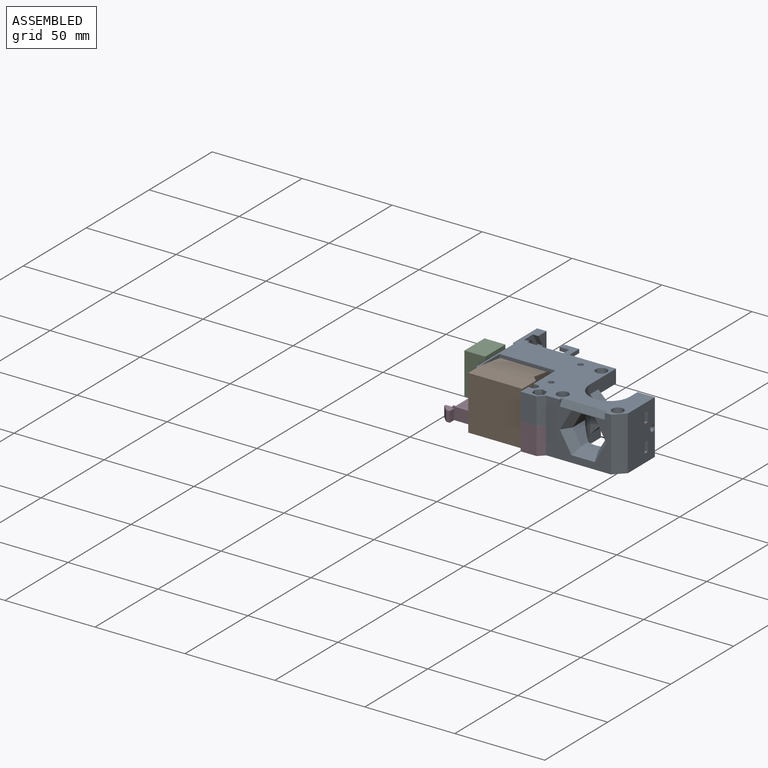
[diagram: assembled view]
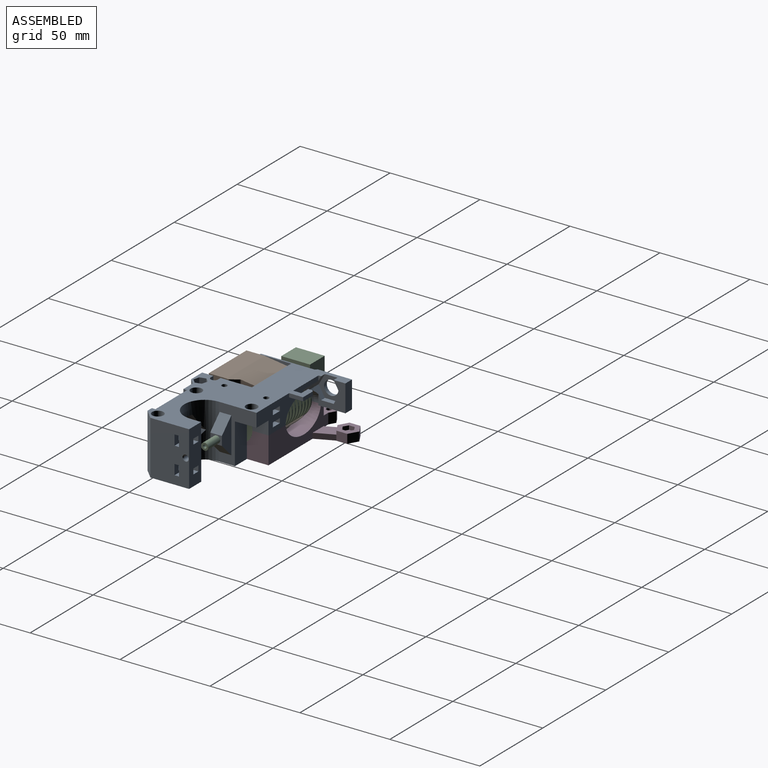
[diagram: assembled view, second angle]
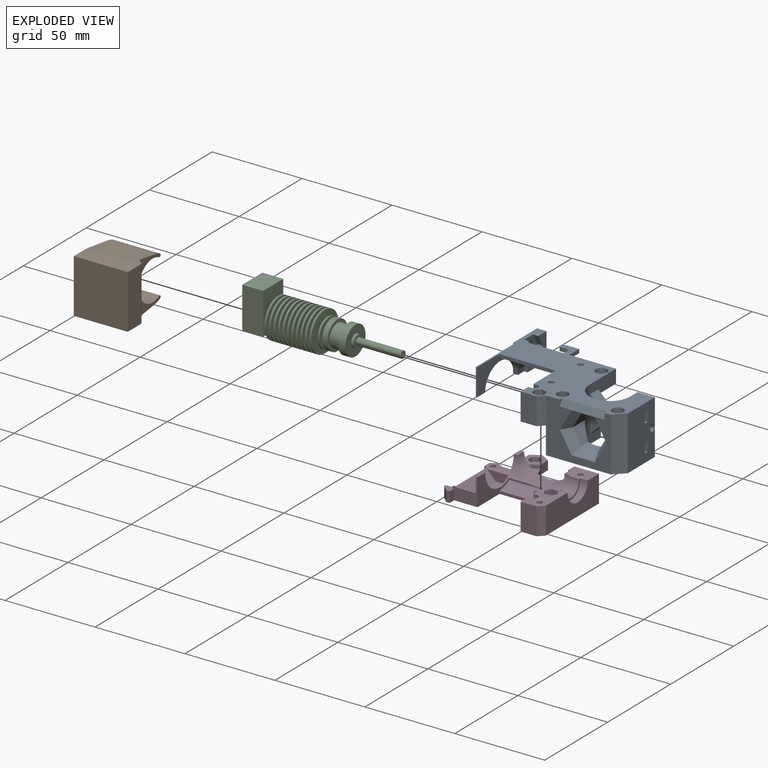
[diagram: exploded view]
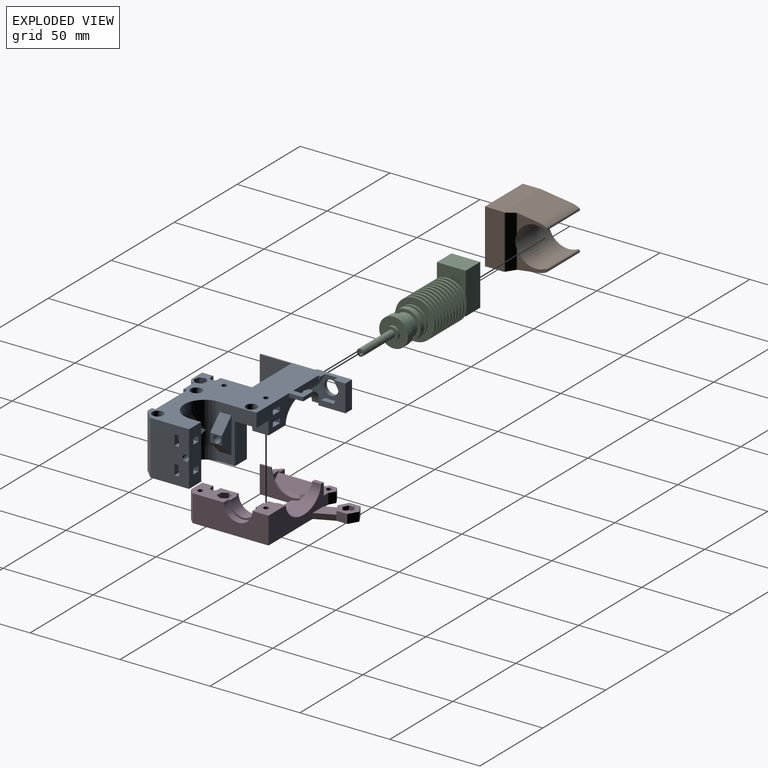
[diagram: exploded view, second angle]
ASSEMBLY  parts=4 mates=3
PART A: 166 faces, bbox 87.6x61.3x31.1 mm
  f0: extruded ~9.48x7.66mm, area 36mm2, adj f1,f163,f164,f165
  f1: cylinder r=1mm len=30.15mm, axis (-1,0,0), area 48.1mm2, adj f0,f2,f161,f162,f163,f165
  f2: extruded ~23.85x11.25mm, area 74.4mm2, adj f1,f3,f159,f160,f162,f163
  f3: plane 6.15x0.85mm, normal (0,0,-1), area 5.2mm2, adj f2,f4,f159,f162
  f4: plane 15x0.85mm, normal (0,-1,0), area 12.8mm2, adj f3,f5,f159,f162
  f5: plane 86.5x60.2mm, normal (0,0,1), area 1926.5mm2, adj f4,f6,f7,f9,f10,f15,f16,f17
  f6: plane 15x1mm, normal (-0.71,-0.71,0), area 21.2mm2, adj f5,f7,f159,f160
  f7: plane 19x15mm, normal (-1,0,0), area 234.7mm2, adj f5,f6,f8,f9,f160
  f8: cylinder r=4mm len=8mm, axis (-1,0,0), area 56.5mm2, adj f7,f16
  f9: plane 15x5.25mm, normal (0,1,0), area 78.7mm2, adj f5,f7,f10,f160
  f10: plane 15x15mm, normal (1,0,0), area 104.7mm2, adj f5,f9,f11,f12,f13,f14,f15,f160
  f11: plane 6x3.46mm, normal (0,-0.87,0.5), area 20.8mm2, adj f10,f14,f15,f16
  f12: plane 5.66x2mm, normal (0,-1,0), area 7.7mm2, adj f10,f13,f160,f163
  f13: plane 7.16x6.21mm, normal (0,0.87,0.5), area 27.3mm2, adj f10,f12,f14,f16,f17,f163
  f14: plane 6.93x3mm, normal (0,0,1), area 20.8mm2, adj f10,f11,f13,f16
  f15: plane 6x3.46mm, normal (0,-0.87,-0.5), area 20.8mm2, adj f5,f10,f11,f16
  f16: plane 13.86x12mm, normal (1,0,0), area 74.4mm2, adj f5,f8,f11,f13,f14,f15,f17
  f17: plane 15.57x6.57mm, normal (0,0.87,-0.5), area 54.4mm2, adj f5,f13,f16,f18,f19,f27,f163
  f18: plane 1.34x0.77mm, normal (-1,0,0), area 0.5mm2, adj f17,f27,f163
  f19: plane 2.66x1.54mm, normal (1,0,0), area 2mm2, adj f5,f17,f27
  f20: plane 4.5x2.1mm, normal (-1,0,0), area 9.4mm2, adj f5,f21,f22,f27
  f21: plane 8.7x7.75mm, normal (0,0,-1), area 42.4mm2, adj f20,f22,f23,f24,f25,f26,f27
  f22: plane 5.45x2.1mm, normal (0,-1,0), area 11.4mm2, adj f5,f20,f21,f23
  f23: plane 2.25x2.1mm, normal (-1,0,0), area 4.7mm2, adj f5,f21,f22,f24
  f24: plane 2.1x1mm, normal (-0.71,0.71,0), area 3mm2, adj f5,f21,f23,f25
  f25: plane 7.7x2.1mm, normal (0,1,0), area 16.2mm2, adj f5,f21,f24,f26
  f26: plane 7.75x2.1mm, normal (1,0,0), area 16.3mm2, adj f5,f21,f25,f27
  f27: plane 49.15x15mm, normal (0,1,0), area 362.1mm2, adj f5,f17,f18,f19,f20,f21,f26,f28
  f28: plane 8.5x5.6mm, normal (0,0,1), area 40.5mm2, adj f27,f29,f30,f31,f34
  f29: cylinder r=1.5mm len=3mm, axis (0,0,-1), area 25.9mm2, adj f28,f164
  f30: plane 5.6x2.5mm, normal (0,1,0), area 14mm2, adj f28,f31,f32,f34
  f31: plane 8.5x2.5mm, normal (1,0,0), area 21.3mm2, adj f27,f28,f30,f32
  f32: plane 8.5x5.6mm, normal (0,0,-1), area 40.5mm2, adj f27,f30,f31,f33,f34
  f33: cylinder r=1.5mm len=3.6mm, axis (0,0,-1), area 33.9mm2, adj f32,f35
  f34: plane 8.5x2.5mm, normal (-1,0,0), area 21.3mm2, adj f27,f28,f30,f32
  f35: plane 8.5x5.6mm, normal (0,0,1), area 40.5mm2, adj f27,f33,f36,f37,f39
  f36: plane 5.6x2.5mm, normal (0,1,0), area 14mm2, adj f35,f37,f38,f39
  f37: plane 8.5x2.5mm, normal (1,0,0), area 21.2mm2, adj f27,f35,f36,f38
  f38: plane 8.5x5.6mm, normal (0,0,-1), area 40.5mm2, adj f27,f36,f37,f39,f158
  f39: plane 8.5x2.5mm, normal (-1,0,0), area 21.2mm2, adj f27,f35,f36,f38
  f40: plane 12x7.5mm, normal (1,0,0), area 76.5mm2, adj f27,f41,f83,f84,f164
  f41: cylinder r=8mm len=16mm, axis (-1,0,0), area 100.5mm2, adj f40,f42,f46,f73,f164
  f42: plane 16x8mm, normal (1,0,0), area 23.6mm2, adj f41,f43,f73,f164
  f43: cylinder r=7mm len=14mm, axis (-1,0,0), area 129.7mm2, adj f42,f44,f73,f164
  f44: plane 16x8mm, normal (-1,0,0), area 23.6mm2, adj f43,f45,f73,f164
  f45: cylinder r=8mm len=16mm, axis (-1,0,0), area 63.4mm2, adj f44,f73,f145,f146,f164,f165
  f46: plane 30.1x23mm, normal (-1,0,0), area 451.3mm2, adj f41,f47,f61,f62,f63,f64,f65,f66
  f47: cylinder r=3.5mm len=4mm, axis (-1,0,0), area 22mm2, adj f46,f48,f61,f67
  f48: plane 13.2x7.4mm, normal (-1,0,0), area 59.1mm2, adj f47,f49,f53,f54,f60,f61,f62,f63
  f49: cylinder r=2mm len=4mm, axis (-1,0,0), area 18.8mm2, adj f48,f50,f52,f53,f60
  f50: cylinder r=3mm len=4mm, axis (0,0,1), area 9.9mm2, adj f49,f51,f52,f53,f60
  f51: bspline ~4.5x3.27mm, area 7.4mm2, adj f50,f53,f54,f60
  f52: cone r=2mm half-angle=45deg, axis (-1,0,0), area 0mm2, adj f49,f50
  f53: plane 4.03x3.55mm, normal (0,1,0), area 11.8mm2, adj f48,f49,f50,f51,f54
  f54: cylinder r=2mm len=13mm, axis (-1,0,0), area 142mm2, adj f48,f51,f53,f55,f60
  f55: plane 6.5x5mm, normal (1,0,0), area 19.9mm2, adj f54,f56,f57,f58,f59
  f56: plane 7.5x7.5mm, normal (0.71,0,0.71), area 68.9mm2, adj f55,f57,f59,f87
  f57: plane 20x7.5mm, normal (0,1,0), area 93.7mm2, adj f55,f56,f58,f87
  f58: plane 7.5x7.5mm, normal (0.71,0,-0.71), area 68.9mm2, adj f55,f57,f59,f87
  f59: plane 20x7.5mm, normal (0,-1,0), area 93.7mm2, adj f55,f56,f58,f87
  f60: plane 4.03x3.56mm, normal (0,-1,0), area 11.8mm2, adj f48,f49,f50,f51,f54
  f61: plane 4x0.4mm, normal (0,0,1), area 1.6mm2, adj f46,f47,f48,f62
  f62: cylinder r=3.5mm len=4mm, axis (1,0,0), area 22mm2, adj f46,f48,f61,f63
  f63: plane 6.2x4mm, normal (0,1,0), area 24.8mm2, adj f46,f48,f62,f64
  f64: cylinder r=3.5mm len=4mm, axis (-1,0,0), area 22mm2, adj f46,f48,f63,f65
  f65: plane 4x0.4mm, normal (0,0,-1), area 1.6mm2, adj f46,f48,f64,f66
  f66: cylinder r=3.5mm len=4mm, axis (1,0,0), area 22mm2, adj f46,f48,f65,f67
  f67: plane 6.2x4mm, normal (0,-1,0), area 24.8mm2, adj f46,f47,f48,f66
  f68: plane 41.6x30.1mm, normal (0,0,-1), area 788.6mm2, adj f46,f69,f71,f83,f87,f88,f101,f104
  f69: cylinder r=1.5mm len=26.5mm, axis (0,0,1), area 249.8mm2, adj f68,f70
  f70: plane 6.3x6.3mm, normal (0,0,1), area 24.1mm2, adj f69,f156
  f71: cylinder r=1.5mm len=26.5mm, axis (0,0,1), area 249.8mm2, adj f68,f72
  f72: plane 6.3x6.3mm, normal (0,0,1), area 24.1mm2, adj f71,f155
  f73: plane 21.28x11.9mm, normal (0,0,-1), area 189.8mm2, adj f41,f42,f43,f44,f45,f46,f74,f76
  f74: cylinder r=1.5mm len=9mm, axis (0,0,1), area 84.8mm2, adj f73,f75
  f75: plane 6.69x6.69mm, normal (0,0,1), area 24.1mm2, adj f74,f148,f149,f150,f151,f152,f153
  f76: plane 4x3mm, normal (-0.87,0.5,0), area 13.9mm2, adj f73,f77,f78,f82
  f77: plane 6.93x6mm, normal (0,0,-1), area 24.1mm2, adj f76,f78,f79,f80,f81,f82,f157
  f78: plane 4x3.46mm, normal (0,1,0), area 13.9mm2, adj f73,f76,f77,f79
  f79: plane 4x3mm, normal (0.87,0.5,0), area 13.9mm2, adj f73,f77,f78,f80
  f80: plane 4x3mm, normal (0.87,-0.5,0), area 13.9mm2, adj f73,f77,f79,f81
  f81: plane 4x3.46mm, normal (0,-1,0), area 13.9mm2, adj f73,f77,f80,f82
  f82: plane 4x3mm, normal (-0.87,-0.5,0), area 13.9mm2, adj f73,f76,f77,f81
  f83: plane 22.5x9.5mm, normal (0,1,0), area 213.7mm2, adj f40,f46,f68,f84,f87
  f84: plane 12x9.5mm, normal (0,0,-1), area 106.9mm2, adj f27,f40,f83,f85,f87
  f85: cylinder r=1.5mm len=4mm, axis (0,0,1), area 37.7mm2, adj f84,f86
  f86: plane 6.3x6.3mm, normal (0,0,1), area 24.1mm2, adj f85,f154
  f87: plane 30x21mm, normal (1,0,0), area 230mm2, adj f5,f27,f56,f57,f58,f59,f68,f83
  f88: cylinder r=11.25mm len=30mm, axis (0,0,1), area 795.5mm2, adj f5,f68,f87,f89,f96,f97,f98,f99
  f89: plane 10.99x9.27mm, normal (0.87,0,-0.5), area 69.8mm2, adj f88,f90,f96,f100
  f90: plane 11.2x8.2mm, normal (0.75,-0.5,-0.43), area 67.2mm2, adj f89,f91,f95,f138
  f91: plane 11.2x8.2mm, normal (0.75,-0.5,0.43), area 67.2mm2, adj f90,f92,f96,f138
  f92: plane 12.93x5.2mm, normal (0,-0.5,0.87), area 67.2mm2, adj f91,f93,f97,f138
  f93: plane 11.2x8.2mm, normal (-0.75,-0.5,0.43), area 67.2mm2, adj f92,f94,f98,f138
  f94: plane 11.2x8.2mm, normal (-0.75,-0.5,-0.43), area 67.2mm2, adj f93,f95,f99,f138
  f95: plane 12.93x5.2mm, normal (0,-0.5,-0.87), area 67.2mm2, adj f90,f94,f100,f138
  f96: plane 10.99x9.27mm, normal (0.87,0,0.5), area 69.8mm2, adj f88,f89,f91,f97
  f97: plane 9.47x5.65mm, normal (0,0,1), area 46.4mm2, adj f88,f92,f96,f98
  f98: plane 10.52x9.18mm, normal (-0.87,0,0.5), area 67.8mm2, adj f88,f93,f97,f99
  f99: plane 10.52x9.18mm, normal (-0.87,0,-0.5), area 67.8mm2, adj f88,f94,f98,f100
  f100: plane 9.47x5.65mm, normal (0,0,-1), area 46.4mm2, adj f88,f89,f95,f99
  f101: plane 30x6mm, normal (-1,0,0), area 175.1mm2, adj f5,f68,f88,f102,f104
  f102: cylinder r=1.25mm len=9.1mm, axis (1,0,0), area 71.5mm2, adj f101,f103
  f103: cone r=1.25mm half-angle=45deg, axis (1,0,0), area 6.7mm2, adj f102,f133
  f104: plane 30x9.6mm, normal (0,1,0), area 264mm2, adj f5,f68,f101,f105,f116,f117,f118,f119
  f105: plane 5.6x4mm, normal (0,0,1), area 22.4mm2, adj f104,f106,f116,f118
  f106: plane 8.2x5.65mm, normal (0,-1,0), area 34.3mm2, adj f105,f107,f114,f115,f116,f117,f118,f133
  f107: plane 8.2x2.5mm, normal (0,0,1), area 20.5mm2, adj f106,f108,f114,f133
  f108: plane 8.2x5.65mm, normal (0,1,0), area 34.3mm2, adj f107,f109,f111,f112,f113,f114,f115,f133
  f109: plane 8.9x3mm, normal (-1,0,0), area 26.7mm2, adj f108,f110,f111,f113
  f110: plane 4x3mm, normal (0,1,0), area 12mm2, adj f109,f111,f112,f113
  f111: plane 8.9x4mm, normal (0,0,1), area 35.6mm2, adj f108,f109,f110,f112
  f112: plane 8.9x3mm, normal (1,0,0), area 26.7mm2, adj f108,f110,f111,f113
  f113: plane 8.9x4mm, normal (0,0,-1), area 35.6mm2, adj f108,f109,f110,f112
  f114: plane 5.65x2.5mm, normal (1,0,0), area 14.1mm2, adj f106,f107,f108,f115
  f115: plane 8.2x2.5mm, normal (0,0,-1), area 20.5mm2, adj f106,f108,f114,f133
  f116: plane 5.6x3mm, normal (1,0,0), area 16.8mm2, adj f104,f105,f106,f117
  f117: plane 5.6x4mm, normal (0,0,-1), area 22.4mm2, adj f104,f106,f116,f118
  f118: plane 5.6x3mm, normal (-1,0,0), area 16.8mm2, adj f104,f105,f106,f117
  f119: plane 5.6x4mm, normal (0,0,1), area 22.4mm2, adj f104,f120,f130,f132
  f120: plane 8.2x5.65mm, normal (0,-1,0), area 34.3mm2, adj f119,f121,f128,f129,f130,f131,f132,f133
  f121: plane 8.2x2.5mm, normal (0,0,1), area 20.5mm2, adj f120,f122,f128,f133
  f122: plane 8.2x5.65mm, normal (0,1,0), area 34.3mm2, adj f121,f123,f125,f126,f127,f128,f129,f133
  f123: plane 8.9x4mm, normal (0,0,1), area 35.6mm2, adj f122,f124,f125,f127
  f124: plane 4x3mm, normal (0,1,0), area 12mm2, adj f123,f125,f126,f127
  f125: plane 8.9x3mm, normal (1,0,0), area 26.7mm2, adj f122,f123,f124,f126
  f126: plane 8.9x4mm, normal (0,0,-1), area 35.6mm2, adj f122,f124,f125,f127
  f127: plane 8.9x3mm, normal (-1,0,0), area 26.7mm2, adj f122,f123,f124,f126
  f128: plane 5.65x2.5mm, normal (1,0,0), area 14.1mm2, adj f120,f121,f122,f129
  f129: plane 8.2x2.5mm, normal (0,0,-1), area 20.5mm2, adj f120,f122,f128,f133
  f130: plane 5.6x3mm, normal (1,0,0), area 16.8mm2, adj f104,f119,f120,f131
  f131: plane 5.6x4mm, normal (0,0,-1), area 22.4mm2, adj f104,f120,f130,f132
  f132: plane 5.6x3mm, normal (-1,0,0), area 16.8mm2, adj f104,f119,f120,f131
  f133: plane 30x21.5mm, normal (1,0,0), area 607.1mm2, adj f5,f68,f103,f104,f106,f107,f108,f115
  f134: plane 30x5.5mm, normal (0.71,-0.71,0), area 233.3mm2, adj f5,f68,f133,f138
  f135: plane 3.46x2mm, normal (-1,0,0), area 3.5mm2, adj f5,f136,f138
  f136: plane 25x3.46mm, normal (0,-0.87,0.5), area 100mm2, adj f5,f135,f137,f138
  f137: plane 3.46x2mm, normal (1,0,0), area 3.5mm2, adj f5,f136,f138
  f138: plane 36x30mm, normal (0,-1,0), area 558.9mm2, adj f5,f68,f90,f91,f92,f93,f94,f95
  f139: plane 30x3.2mm, normal (0.71,-0.71,0), area 70mm2, adj f5,f46,f68,f73,f138,f140
  f140: plane 15x8.8mm, normal (0,-1,0), area 132mm2, adj f5,f73,f139,f141
  f141: plane 15x6.2mm, normal (-1,0,0), area 93mm2, adj f5,f73,f140,f142
  f142: plane 15x2mm, normal (0,1,0), area 30mm2, adj f5,f73,f141,f143
  f143: cylinder r=2mm len=15mm, axis (0,0,1), area 94.2mm2, adj f5,f73,f142,f144
  f144: plane 15x2mm, normal (0,-1,0), area 30mm2, adj f5,f73,f143,f145
  f145: plane 17.5x15mm, normal (-1,0,0), area 216.8mm2, adj f5,f45,f73,f144,f146
  f146: plane 31.15x7.02mm, normal (0,-1,0), area 63.3mm2, adj f5,f45,f145,f147,f162,f165
  f147: plane 30.15x1.95mm, normal (0,-0.11,-0.99), area 59.2mm2, adj f146,f161,f162,f165
  f148: plane 6x3.35mm, normal (0.26,0.97,0), area 20.8mm2, adj f5,f75,f149,f153
  f149: plane 6x2.45mm, normal (-0.71,0.71,0), area 20.8mm2, adj f5,f75,f148,f150
  f150: plane 6x3.35mm, normal (-0.97,-0.26,0), area 20.8mm2, adj f5,f75,f149,f151
  f151: plane 6x3.35mm, normal (-0.26,-0.97,0), area 20.8mm2, adj f5,f75,f150,f152
  f152: plane 6x2.45mm, normal (0.71,-0.71,0), area 20.8mm2, adj f5,f75,f151,f153
  f153: plane 6x3.35mm, normal (0.97,0.26,0), area 20.8mm2, adj f5,f75,f148,f152
  f154: cylinder r=3.15mm len=6.3mm, axis (0,0,1), area 69.3mm2, adj f5,f86
  f155: cylinder r=3.15mm len=6.3mm, axis (0,0,1), area 69.3mm2, adj f5,f72
  f156: cylinder r=3.15mm len=6.3mm, axis (0,0,1), area 69.3mm2, adj f5,f70
  f157: cylinder r=1.5mm len=11mm, axis (0,0,-1), area 103.7mm2, adj f5,f77
  f158: cylinder r=1.5mm len=3.65mm, axis (0,0,-1), area 34.4mm2, adj f5,f38
  f159: plane 30x15mm, normal (-1,0,0), area 239.3mm2, adj f2,f3,f4,f5,f6
  f160: plane 20x5.25mm, normal (0,0,-1), area 94.5mm2, adj f2,f6,f7,f9,f10,f12,f163
  f161: cylinder r=13mm len=30.15mm, axis (-1,0,0), area 163.6mm2, adj f1,f147,f162,f165
  f162: plane 25.08x15mm, normal (1,0,0), area 176.8mm2, adj f1,f2,f3,f4,f5,f146,f147,f161
  f163: extruded ~28x11mm, area 304.7mm2, adj f0,f1,f2,f12,f13,f17,f18,f27
  f164: plane 13.65x9.93mm, normal (0,0,-1), area 117.7mm2, adj f0,f27,f29,f40,f41,f42,f43,f44
  f165: plane 13.14x12.5mm, normal (-1,0,0), area 70.2mm2, adj f0,f1,f45,f146,f147,f161,f164
PART B: 18 faces, bbox 30x30x31.8 mm
  f0: plane 16.41x9.64mm, normal (0,1,0), area 54.9mm2, adj f1,f2,f3,f4,f16
  f1: cylinder r=11mm len=26.6mm, axis (0,1,0), area 1179.5mm2, adj f0,f2,f10,f11,f12,f14,f15,f16
  f2: cylinder r=0.88mm len=26mm, axis (0,1,0), area 71.5mm2, adj f0,f1,f3,f11
  f3: cylinder r=12.75mm len=26mm, axis (0,1,0), area 115.6mm2, adj f0,f2,f4,f11
  f4: plane 30.01x17.15mm, normal (-0.99,0,0.14), area 462.1mm2, adj f0,f3,f5,f11,f13,f14,f16,f17
  f5: plane 30x10mm, normal (-1,0,0), area 300mm2, adj f4,f6,f11,f13
  f6: plane 30x30mm, normal (0,0,-1), area 900mm2, adj f5,f7,f11,f13
  f7: plane 30x10mm, normal (1,0,0), area 300mm2, adj f6,f8,f11,f13
  f8: plane 30.01x17.15mm, normal (0.99,0,0.14), area 462.1mm2, adj f7,f9,f11,f12,f13,f14,f15,f17
  f9: cylinder r=12.75mm len=26mm, axis (0,1,0), area 115.6mm2, adj f8,f10,f11,f12
  f10: cylinder r=0.88mm len=26mm, axis (0,1,0), area 71.5mm2, adj f1,f9,f11,f12
  f11: plane 31.82x30mm, normal (0,-1,0), area 561.9mm2, adj f1,f2,f3,f4,f5,f6,f7,f8
  f12: plane 16.41x9.64mm, normal (0,1,0), area 54.9mm2, adj f1,f8,f9,f10,f15
  f13: plane 30x10.59mm, normal (0,1,0), area 317.5mm2, adj f4,f5,f6,f7,f8,f17
  f14: plane 29.64x3.41mm, normal (0,0.71,0.71), area 139.3mm2, adj f1,f4,f8,f15,f16,f17
  f15: cylinder r=1mm len=11.77mm, axis (1,0,0), area 8.4mm2, adj f1,f8,f12,f14
  f16: cylinder r=1mm len=11.77mm, axis (1,0,0), area 8.4mm2, adj f0,f1,f4,f14
  f17: cylinder r=1mm len=29.84mm, axis (-1,0,0), area 23.4mm2, adj f4,f8,f13,f14
PART C: 77 faces, bbox 26.8x22x88.9 mm
  f0: plane 1x1mm, normal (0,0,-1), area 0.8mm2, adj f1
  f1: cone r=0.5mm half-angle=36.9deg, axis (0,0,1), area 19.6mm2, adj f0,f8
  f2: plane 4.04x3mm, normal (0,-1,0), area 12.1mm2, adj f3,f7,f8,f9
  f3: plane 3.5x3mm, normal (0.87,-0.5,0), area 12.1mm2, adj f2,f4,f8,f9
  f4: plane 3.5x3mm, normal (0.87,0.5,0), area 12.1mm2, adj f3,f5,f8,f9
  f5: plane 4.04x3mm, normal (0,1,0), area 12.1mm2, adj f4,f6,f8,f9
  f6: plane 3.5x3mm, normal (-0.87,0.5,0), area 12.1mm2, adj f5,f7,f8,f9
  f7: plane 3.5x3mm, normal (-0.87,-0.5,0), area 12.1mm2, adj f2,f6,f8,f9
  f8: plane 8.08x7mm, normal (0,0,-1), area 29.9mm2, adj f1,f2,f3,f4,f5,f6,f7
  f9: plane 23x16mm, normal (0,0,-1), area 325.6mm2, adj f2,f3,f4,f5,f6,f7,f10,f11
  f10: plane 23x11.6mm, normal (0,-1,0), area 266.8mm2, adj f9,f11,f13,f14
  f11: plane 16x11.6mm, normal (1,0,0), area 185.6mm2, adj f9,f10,f12,f14
  f12: plane 23x11.6mm, normal (0,1,0), area 266.8mm2, adj f9,f11,f13,f14
  f13: plane 16x11.6mm, normal (-1,0,0), area 185.6mm2, adj f9,f10,f12,f14
  f14: plane 23x16mm, normal (0,0,1), area 362.1mm2, adj f10,f11,f12,f13,f15
  f15: cylinder r=1.38mm len=2.75mm, axis (0,0,-1), area 23.8mm2, adj f14,f16
  f16: plane 22x22mm, normal (0,0,-1), area 374.2mm2, adj f15,f17
  f17: cylinder r=11mm len=22mm, axis (0,0,-1), area 69.1mm2, adj f16,f18
  f18: plane 22x22mm, normal (0,0,1), area 267mm2, adj f17,f19
  f19: cone r=6mm half-angle=4deg, axis (0,0,-1), area 56.2mm2, adj f18,f20
  f20: plane 22x22mm, normal (0,0,-1), area 270.9mm2, adj f19,f21
  f21: cylinder r=11mm len=22mm, axis (0,0,-1), area 69.1mm2, adj f20,f22
  f22: plane 22x22mm, normal (0,0,1), area 273.5mm2, adj f21,f23
  f23: cone r=5.83mm half-angle=4deg, axis (0,0,-1), area 54.6mm2, adj f22,f24
  f24: plane 22x22mm, normal (0,0,-1), area 277.2mm2, adj f23,f25
  f25: cylinder r=11mm len=22mm, axis (0,0,-1), area 69.1mm2, adj f24,f26
  f26: plane 22x22mm, normal (0,0,1), area 279.7mm2, adj f25,f27
  f27: cone r=5.65mm half-angle=4deg, axis (0,0,-1), area 52.9mm2, adj f26,f28
  f28: plane 22x22mm, normal (0,0,-1), area 283.3mm2, adj f27,f29
  f29: cylinder r=11mm len=22mm, axis (0,0,-1), area 69.1mm2, adj f28,f30
  f30: plane 22x22mm, normal (0,0,1), area 285.7mm2, adj f29,f31
  f31: cone r=5.48mm half-angle=4deg, axis (0,0,-1), area 51.3mm2, adj f30,f32
  f32: plane 22x22mm, normal (0,0,-1), area 289.3mm2, adj f31,f33
  f33: cylinder r=11mm len=22mm, axis (0,0,-1), area 69.1mm2, adj f32,f34
  f34: plane 22x22mm, normal (0,0,1), area 291.6mm2, adj f33,f35
  f35: cone r=5.31mm half-angle=4deg, axis (0,0,-1), area 49.7mm2, adj f34,f36
  f36: plane 22x22mm, normal (0,0,-1), area 295mm2, adj f35,f37
  f37: cylinder r=11mm len=22mm, axis (0,0,-1), area 69.1mm2, adj f36,f38
  f38: plane 22x22mm, normal (0,0,1), area 297.3mm2, adj f37,f39
  f39: cone r=5.14mm half-angle=4deg, axis (0,0,-1), area 48mm2, adj f38,f40
  f40: plane 22x22mm, normal (0,0,-1), area 300.6mm2, adj f39,f41
  f41: cylinder r=11mm len=22mm, axis (0,0,-1), area 69.1mm2, adj f40,f42
  f42: plane 22x22mm, normal (0,0,1), area 302.8mm2, adj f41,f43
  f43: cone r=4.96mm half-angle=4deg, axis (0,0,-1), area 46.4mm2, adj f42,f44
  f44: plane 22x22mm, normal (0,0,-1), area 306mm2, adj f43,f45
  f45: cylinder r=11mm len=22mm, axis (0,0,-1), area 69.1mm2, adj f44,f46
  f46: plane 22x22mm, normal (0,0,1), area 308.1mm2, adj f45,f47
  f47: cone r=4.79mm half-angle=4deg, axis (0,0,-1), area 44.8mm2, adj f46,f48
  f48: plane 22x22mm, normal (0,0,-1), area 311.2mm2, adj f47,f49
  f49: cylinder r=11mm len=22mm, axis (0,0,-1), area 69.1mm2, adj f48,f50
  f50: plane 22x22mm, normal (0,0,1), area 313.2mm2, adj f49,f51
  f51: cone r=4.62mm half-angle=4deg, axis (0,0,-1), area 43.1mm2, adj f50,f52
  f52: plane 22x22mm, normal (0,0,-1), area 316.1mm2, adj f51,f53
  f53: cylinder r=11mm len=22mm, axis (0,0,-1), area 69.1mm2, adj f52,f54
  f54: plane 22x22mm, normal (0,0,1), area 318.1mm2, adj f53,f55
  f55: cone r=4.44mm half-angle=4deg, axis (0,0,-1), area 41.5mm2, adj f54,f56
  f56: plane 22x22mm, normal (0,0,-1), area 321mm2, adj f55,f57
  f57: cylinder r=11mm len=22mm, axis (0,0,-1), area 69.1mm2, adj f56,f58
  f58: plane 22x22mm, normal (0,0,1), area 322.8mm2, adj f57,f59
  f59: cone r=4.27mm half-angle=4deg, axis (0,0,-1), area 39.9mm2, adj f58,f60
  f60: plane 16x16mm, normal (0,0,-1), area 146.5mm2, adj f59,f61
  f61: cylinder r=8mm len=16mm, axis (0,0,-1), area 50.3mm2, adj f60,f62
  f62: plane 16x16mm, normal (0,0,1), area 148.3mm2, adj f61,f63
  f63: cone r=4.1mm half-angle=4deg, axis (0,0,-1), area 38.2mm2, adj f62,f64
  f64: plane 16x16mm, normal (0,0,-1), area 150.9mm2, adj f63,f65
  f65: cylinder r=8mm len=16mm, axis (0,0,-1), area 150.8mm2, adj f64,f66
  f66: plane 16x16mm, normal (0,0,1), area 78.3mm2, adj f65,f67
  f67: cylinder r=6.25mm len=12.5mm, axis (0,0,-1), area 235.6mm2, adj f66,f68
  f68: plane 16x16mm, normal (0,0,-1), area 78.3mm2, adj f67,f69
  f69: cylinder r=8mm len=16mm, axis (0,0,-1), area 201.1mm2, adj f68,f70
  f70: plane 16x16mm, normal (0,0,1), area 162.6mm2, adj f69,f71
  f71: cylinder r=3.5mm len=7mm, axis (0,0,-1), area 33mm2, adj f70,f72
  f72: plane 7x7mm, normal (0,0,1), area 25.9mm2, adj f71,f74
  f73: cylinder r=1mm len=25mm, axis (0,0,-1), area 157.1mm2, adj f75,f76
  f74: cylinder r=2mm len=25mm, axis (0,0,-1), area 314.2mm2, adj f72,f75
  f75: plane 4x4mm, normal (0,0,1), area 9.4mm2, adj f73,f74
  f76: plane 2x2mm, normal (0,0,1), area 3.1mm2, adj f73
PART D: 84 faces, bbox 61.5x64.3x15 mm
  f0: cylinder r=11.93mm len=11.22mm, axis (-1,0,0), area 48.5mm2, adj f2,f9,f10,f81
  f1: cylinder r=11.93mm len=23.85mm, axis (-1,0,0), area 83.5mm2, adj f2,f12,f15,f78,f80,f81
  f2: extruded ~28x10.22mm, area 292.8mm2, adj f0,f1,f10,f11,f12,f81
  f3: plane 31.15x7.02mm, normal (0,-1,0), area 54.9mm2, adj f8,f9,f30,f78,f79,f82
  f4: plane 7.85x5.85mm, normal (0,1,0), area 45.9mm2, adj f14,f18,f30,f80
  f5: plane 13.1x6mm, normal (0,1,0), area 61.1mm2, adj f14,f72,f73,f75,f76,f80
  f6: plane 21.28x11.9mm, normal (0,0,1), area 190.1mm2, adj f7,f8,f29,f31,f32,f33,f34,f35
  f7: plane 15x2mm, normal (0,-1,0), area 30mm2, adj f6,f30,f35,f79
  f8: cylinder r=8mm len=16mm, axis (-1,0,0), area 63.4mm2, adj f3,f6,f9,f10,f60,f79
  f9: plane 13.41x12.5mm, normal (-1,0,0), area 72.7mm2, adj f0,f3,f8,f10,f81,f82,f83
  f10: plane 13.65x9.93mm, normal (0,0,1), area 117.7mm2, adj f0,f2,f8,f9,f11,f28,f33,f57
  f11: plane 43.9x15mm, normal (0,1,0), area 411.6mm2, adj f2,f10,f12,f30,f33,f36,f37,f44
  f12: plane 5x2.25mm, normal (0,0,1), area 11.2mm2, adj f1,f2,f11,f80
  f13: plane 25x4mm, normal (-0.71,0,-0.71), area 141.4mm2, adj f16,f22,f30,f77
  f14: plane 33.02x14.85mm, normal (0,0,1), area 111.6mm2, adj f4,f5,f16,f18,f19,f20,f21,f27
  f15: plane 6.15x0.85mm, normal (0,0,1), area 5.2mm2, adj f1,f17,f78,f80
  f16: plane 25.95x5.85mm, normal (-1,0,0), area 51.8mm2, adj f13,f14,f21,f22,f30,f77
  f17: plane 15x13.95mm, normal (0,-1,0), area 96.6mm2, adj f15,f26,f30,f71,f72,f73,f78,f80
  f18: plane 5.85x3.5mm, normal (0.5,0.87,0), area 23.6mm2, adj f4,f14,f19,f30
  f19: plane 5.85x3.5mm, normal (-0.5,0.87,0), area 23.6mm2, adj f14,f18,f20,f30
  f20: plane 5.85x4.04mm, normal (-1,0,0), area 23.6mm2, adj f14,f19,f21,f30
  f21: plane 5.85x1.75mm, normal (-0.5,-0.87,0), area 11.8mm2, adj f14,f16,f20,f30
  f22: plane 8.5x5.85mm, normal (0,1,0), area 34.3mm2, adj f13,f16,f23,f30,f71
  f23: plane 5.85x1mm, normal (-1,0,0), area 5.8mm2, adj f22,f24,f30,f71
  f24: plane 5.85x3.5mm, normal (-0.71,-0.71,0), area 29mm2, adj f23,f25,f30,f71
  f25: plane 5.85x2mm, normal (0,-1,0), area 11.7mm2, adj f24,f26,f30,f71
  f26: plane 5.85x3.5mm, normal (1,0,0), area 20.5mm2, adj f17,f25,f30,f71
  f27: cylinder r=1.5mm len=5.85mm, axis (0,0,1), area 55.1mm2, adj f14,f30
  f28: cylinder r=1.5mm len=11.5mm, axis (0,0,1), area 108.4mm2, adj f10,f61
  f29: cylinder r=1.5mm len=11.5mm, axis (0,0,1), area 108.4mm2, adj f6,f55
  f30: plane 64.29x61.5mm, normal (0,0,-1), area 1536.3mm2, adj f3,f4,f7,f11,f13,f16,f17,f18
  f31: plane 15x6.2mm, normal (-1,0,0), area 93mm2, adj f6,f30,f32,f34
  f32: plane 15x8.9mm, normal (0,-1,0), area 133.5mm2, adj f6,f30,f31,f54
  f33: plane 42.2x15mm, normal (1,0,0), area 532.5mm2, adj f6,f10,f11,f30,f54,f58
  f34: plane 15x2mm, normal (0,1,0), area 30mm2, adj f6,f30,f31,f35
  f35: cylinder r=2mm len=15mm, axis (0,0,1), area 94.2mm2, adj f6,f7,f30,f34
  f36: plane 8.63x3.95mm, normal (-0.91,-0.42,0), area 28.5mm2, adj f11,f30,f42,f44
  f37: plane 10x4.58mm, normal (0.91,0.42,0), area 33mm2, adj f11,f30,f38,f44
  f38: plane 6.06x5mm, normal (1,0,0), area 30.3mm2, adj f30,f37,f39,f43,f45
  f39: plane 5.25x5mm, normal (0.5,0.87,0), area 30.3mm2, adj f30,f38,f40,f45
  f40: plane 5.25x5mm, normal (-0.5,0.87,0), area 30.3mm2, adj f30,f39,f41,f45
  f41: plane 6.06x5mm, normal (-1,0,0), area 30.3mm2, adj f30,f40,f42,f45
  f42: plane 5.25x5mm, normal (-0.5,-0.87,0), area 20.4mm2, adj f30,f36,f41,f43,f44,f45
  f43: plane 5.25x3.03mm, normal (0.5,-0.87,0), area 12.1mm2, adj f38,f42,f44,f45
  f44: plane 12.7x10mm, normal (0,0,1), area 72.8mm2, adj f11,f36,f37,f42,f43
  f45: plane 12.12x10.5mm, normal (0,0,1), area 69.3mm2, adj f38,f39,f40,f41,f42,f43,f46,f47
  f46: plane 3.18x2.25mm, normal (1,0,0), area 7.1mm2, adj f45,f47,f51,f52
  f47: plane 2.75x2.25mm, normal (0.5,0.87,0), area 7.1mm2, adj f45,f46,f48,f52
  f48: plane 2.75x2.25mm, normal (-0.5,0.87,0), area 7.1mm2, adj f45,f47,f49,f52
  f49: plane 3.18x2.25mm, normal (-1,0,0), area 7.1mm2, adj f45,f48,f50,f52
  f50: plane 2.75x2.25mm, normal (-0.5,-0.87,0), area 7.1mm2, adj f45,f49,f51,f52
  f51: plane 2.75x2.25mm, normal (0.5,-0.87,0), area 7.1mm2, adj f45,f46,f50,f52
  f52: plane 6.35x5.5mm, normal (0,0,1), area 19.1mm2, adj f46,f47,f48,f49,f50,f51,f53
  f53: cylinder r=1.5mm len=3mm, axis (0,0,1), area 25.9mm2, adj f30,f52
  f54: plane 15x3mm, normal (0.71,-0.71,0), area 63.6mm2, adj f6,f30,f32,f33
  f55: plane 6x6mm, normal (0,0,-1), area 21.2mm2, adj f29,f56
  f56: cylinder r=3mm len=6mm, axis (0,0,-1), area 66mm2, adj f30,f55
  f57: plane 16x8mm, normal (1,0,0), area 23.6mm2, adj f6,f10,f58,f59
  f58: cylinder r=8mm len=16mm, axis (1,0,0), area 100.5mm2, adj f6,f10,f33,f57
  f59: cylinder r=7mm len=14mm, axis (-1,0,0), area 129.7mm2, adj f6,f10,f57,f60
  f60: plane 16x8mm, normal (-1,0,0), area 23.6mm2, adj f6,f8,f10,f59
  f61: plane 6x6mm, normal (0,0,-1), area 21.2mm2, adj f28,f62
  f62: cylinder r=3mm len=6mm, axis (0,0,-1), area 66mm2, adj f30,f61
  f63: plane 13.2x3.46mm, normal (0,1,0), area 45.7mm2, adj f6,f64,f68,f69
  f64: plane 13.2x3mm, normal (-0.87,0.5,0), area 45.7mm2, adj f6,f63,f65,f69
  f65: plane 13.2x3mm, normal (-0.87,-0.5,0), area 45.7mm2, adj f6,f64,f66,f69
  f66: plane 13.2x3.46mm, normal (0,-1,0), area 45.7mm2, adj f6,f65,f67,f69
  f67: plane 13.2x3mm, normal (0.87,-0.5,0), area 45.7mm2, adj f6,f66,f68,f69
  f68: plane 13.2x3mm, normal (0.87,0.5,0), area 45.7mm2, adj f6,f63,f67,f69
  f69: plane 6.93x6mm, normal (0,0,1), area 24.1mm2, adj f63,f64,f65,f66,f67,f68,f70
  f70: cylinder r=1.5mm len=3mm, axis (0,0,1), area 17mm2, adj f30,f69
  f71: plane 5.5x4.5mm, normal (0,0,1), area 17.6mm2, adj f17,f22,f23,f24,f25,f26,f72
  f72: plane 1x1mm, normal (-1,0,0), area 1mm2, adj f5,f17,f71,f73
  f73: plane 13.1x1mm, normal (0,0,1), area 13.1mm2, adj f5,f17,f72,f80
  f74: plane 12.1x5mm, normal (0,-1,0), area 48mm2, adj f14,f75,f76,f80
  f75: plane 25x7.1mm, normal (0,0,1), area 177.5mm2, adj f5,f74,f76,f80
  f76: plane 25x5mm, normal (0.71,0,0.71), area 176.8mm2, adj f5,f14,f74,f75
  f77: plane 4x4mm, normal (0,-1,0), area 8mm2, adj f13,f16,f30
  f78: plane 25.08x15mm, normal (1,0,0), area 166.6mm2, adj f1,f3,f15,f17,f30,f81,f82,f83
  f79: plane 17.5x15mm, normal (-1,0,0), area 216.8mm2, adj f3,f6,f7,f8,f30
  f80: plane 35x15mm, normal (-1,0,0), area 238.4mm2, adj f1,f4,f5,f11,f12,f14,f15,f17
  f81: cylinder r=1mm len=30.15mm, axis (-1,0,0), area 48.4mm2, adj f0,f1,f2,f9,f78,f83
  f82: plane 30.15x3.27mm, normal (0,-0.21,0.98), area 100.8mm2, adj f3,f9,f78,f83
  f83: cylinder r=13mm len=30.15mm, axis (-1,0,0), area 123.4mm2, adj f9,f78,f81,f82
PLACE A t=(62.82,-4.69,-23.63)mm
PLACE B rot(axis=(-0.58,-0.58,-0.58),120deg) t=(46.97,-5.02,-8.63)mm
PLACE C rot(axis=(-0.71,0,-0.71),180deg) t=(1.62,20.38,-8.63)mm
PLACE D t=(35.47,14.71,-23.63)mm
MATE fastened B.f1 <-> C.f17  axis (1,0,0) through (46.97,20.38,-8.63)mm
MATE fastened D.f29 <-> A.f74  axis (0,0,1) through (59.56,-3.54,-8.63)mm
MATE fastened C.f17 <-> A.f102  axis (1,0,0) through (63.97,20.38,-8.63)mm
